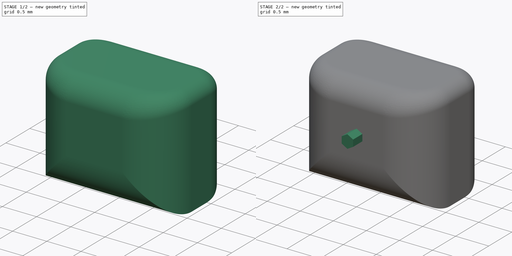
[diagram: build sequence overview — one tinted view per stage of 2, left to right]
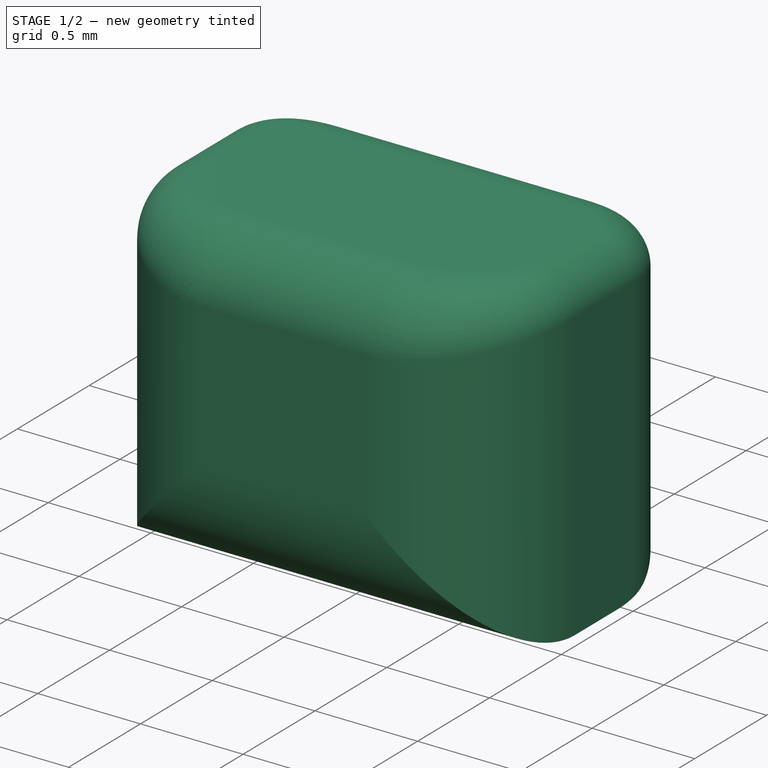
[diagram: stage 1 of 2 — iso view after this stage's code; geometry added in this stage tinted green]
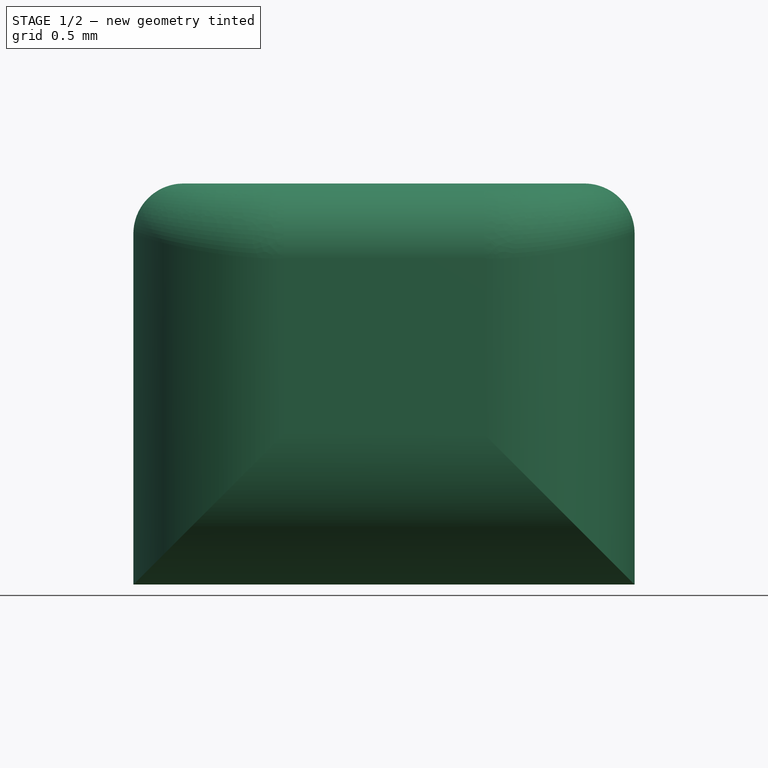
[diagram: stage 1 of 2 — front view after this stage's code; geometry added in this stage tinted green]
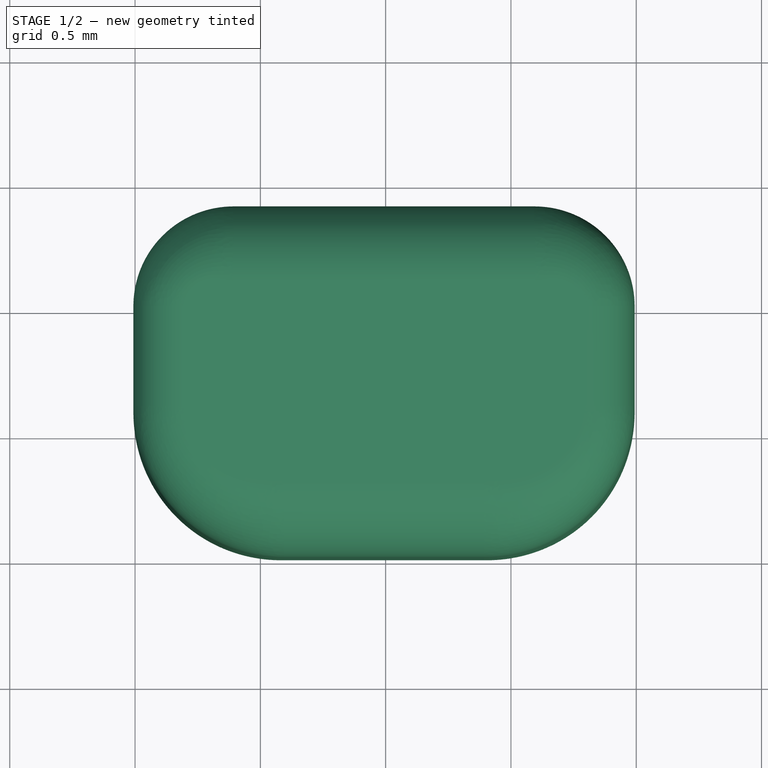
[diagram: stage 1 of 2 — top view after this stage's code; geometry added in this stage tinted green]
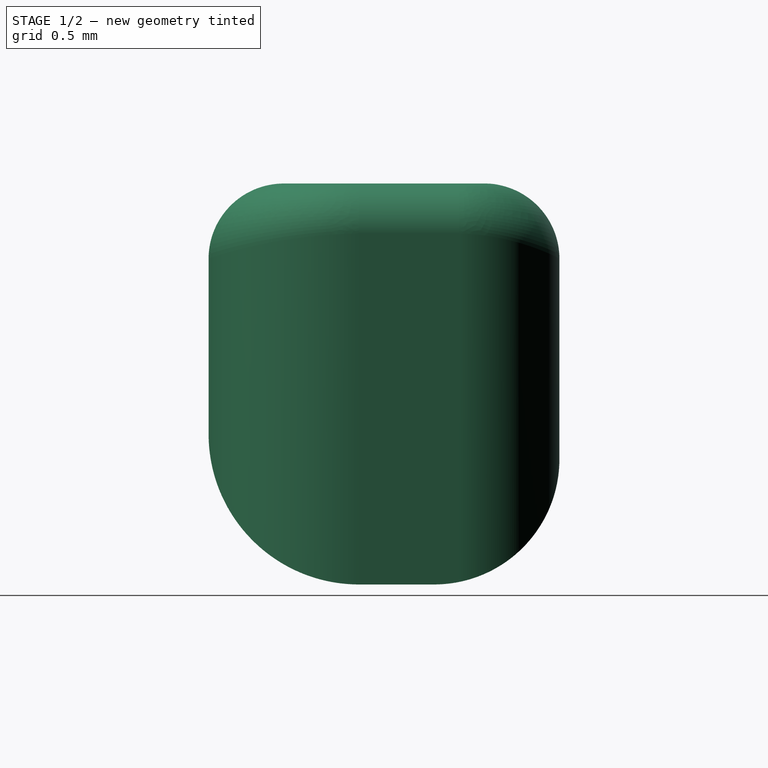
[diagram: stage 1 of 2 — right view after this stage's code; geometry added in this stage tinted green]
FCSTD DOCUMENT  (FreeCAD 0.15R4671 (Git))
Label: head_girl
License: All rights reserved
LicenseURL: http://en.wikipedia.org/wiki/All_rights_reserved
objects: Sketcher::SketchObject×2, PartDesign::Pad×2, Part::Fillet×1
note: 7 computed .brp shape members not serialized (recipe doc carries the construction recipe); baked Part::Feature solids carry a one-line shape summary decoded from their .brp

FEATURE [Sketcher::SketchObject] Sketch002  label="head_sketch"
  Placement = pos=(-0.00651598,2.00404,0.675175) rot=(0,0,1;0rad)
  sketch-geometry (5):
    g0: LineSegment StartX=-1 StartY=1.4 StartZ=0 EndX=1 EndY=1.4 EndZ=0
    g1: LineSegment StartX=1 StartY=1.4 StartZ=0 EndX=1 EndY=0 EndZ=0
    g2: LineSegment StartX=1 StartY=0 StartZ=0 EndX=-1 EndY=0 EndZ=0
    g3: LineSegment StartX=-1 StartY=0 StartZ=0 EndX=-1 EndY=1.4 EndZ=0
    g4: GeomPoint [constr] X=0 Y=0 Z=0
  constraints (14):
    c: Coincident(g0,g1)
    c: Coincident(g1,g2)
    c: Coincident(g2,g3)
    c: Coincident(g3,g0)
    c: Horizontal(g0)
    c: Horizontal(g2)
    c: Vertical(g1)
    c: Vertical(g3)
    c: PointOnObject(g4,g2)
    c: DistanceX(g4) = 0
    c: DistanceY(g4) = 0
    c: Symmetric(g2,g1,g-1)
    c: Distance(g3) = 1.4
    c: Distance(g0) = 2
FEATURE [PartDesign::Pad] Pad001  label="head"
  Length = 1.6
  Length2 = 100
  Placement = pos=(-0.00651598,2.00404,0.675175) rot=(0,0,1;0rad)
  Reversed = true
  Sketch = -> Sketch002
  Type = 0
FEATURE [Part::Fillet] Fillet003001  label="HeadGirl"
  Base = -> Pad001
  Edges = 10 edges: [Edge1 r=0.4,Edge2 r=0.4,Edge3 r=0.3,Edge4 r=0.5,Edge5 r=0.6,Edge6 r=0.2,Edge8 r=0.6,Edge9 r=0.3,Edge10 r=0.6,Edge11 r=0.2]
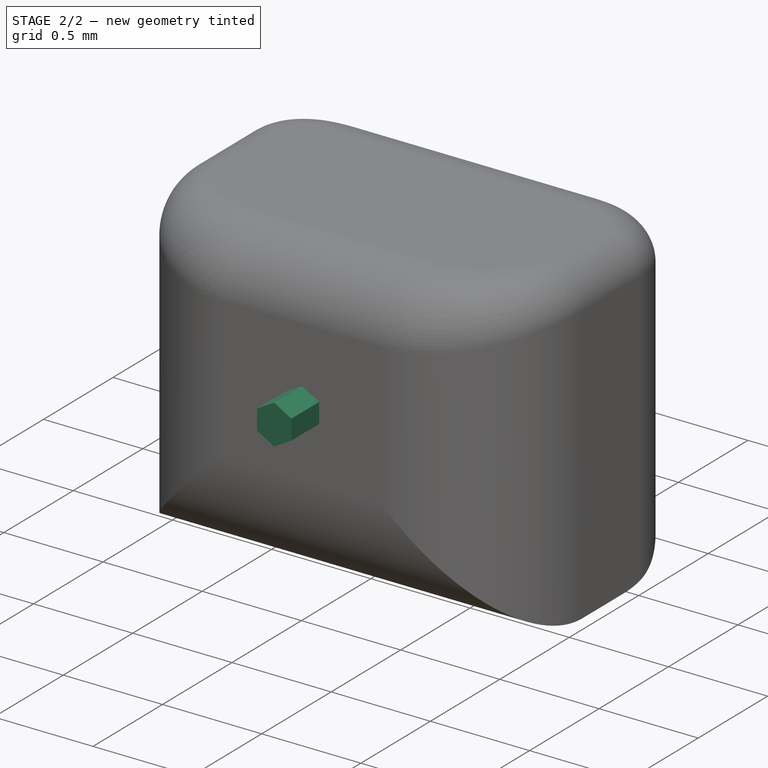
[diagram: stage 2 of 2 — iso view after this stage's code; geometry added in this stage tinted green]
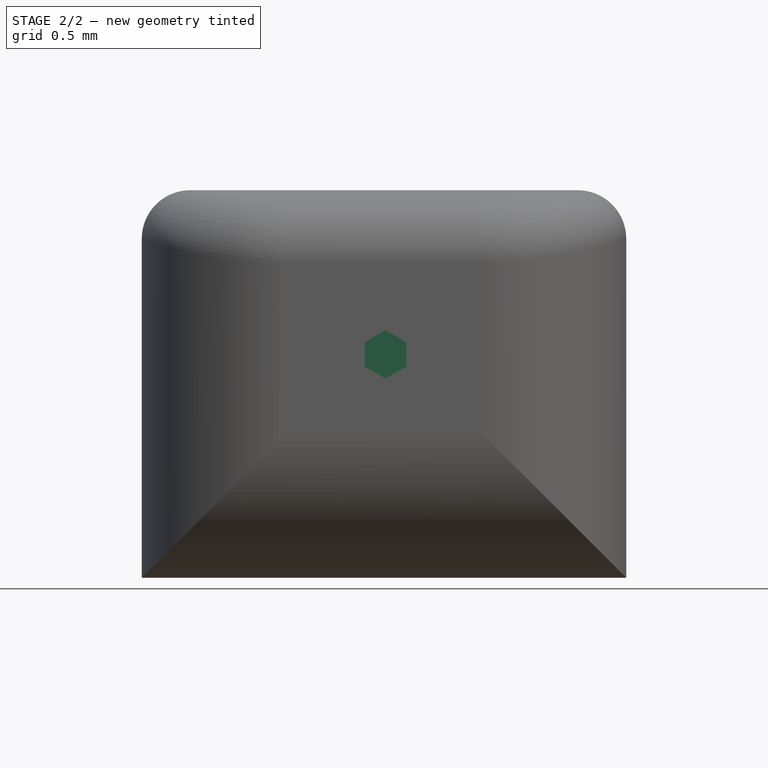
[diagram: stage 2 of 2 — front view after this stage's code; geometry added in this stage tinted green]
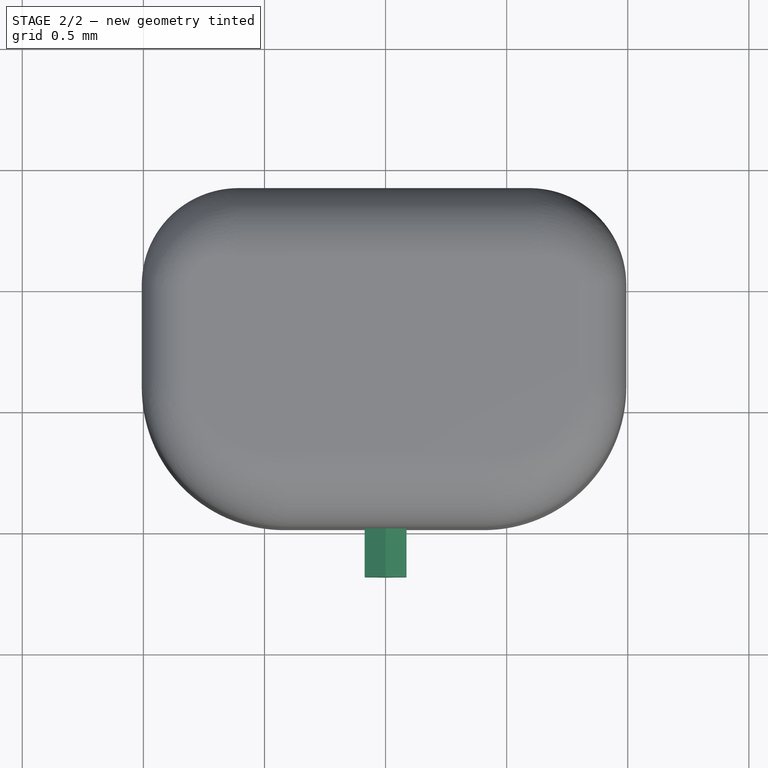
[diagram: stage 2 of 2 — top view after this stage's code; geometry added in this stage tinted green]
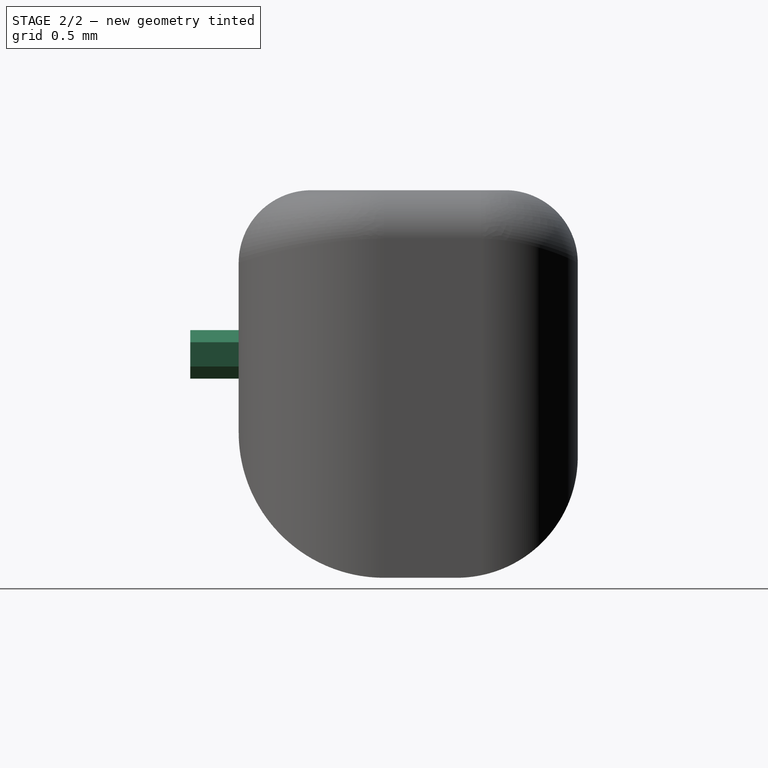
[diagram: stage 2 of 2 — right view after this stage's code; geometry added in this stage tinted green]
FEATURE [Sketcher::SketchObject] Sketch003  label="join"
  Placement = pos=(0,2.00404,0) rot=(1,0,0;1.5708rad)
  Support = -> Fillet003001 [Face20]
  sketch-geometry (7):
    g0: LineSegment StartX=0 StartY=0.0975258 StartZ=0 EndX=-0.0866025 EndY=0.0475258 EndZ=0
    g1: LineSegment StartX=-0.0866025 StartY=0.0475258 StartZ=0 EndX=-0.0866025 EndY=-0.0524742 EndZ=0
    g2: LineSegment StartX=-0.0866025 StartY=-0.0524742 StartZ=0 EndX=0 EndY=-0.102474 EndZ=0
    g3: LineSegment StartX=0 StartY=-0.102474 StartZ=0 EndX=0.0866025 EndY=-0.0524742 EndZ=0
    g4: LineSegment StartX=0.0866025 StartY=-0.0524742 StartZ=0 EndX=0.0866025 EndY=0.0475258 EndZ=0
    g5: LineSegment StartX=0.0866025 StartY=0.0475258 StartZ=0 EndX=0 EndY=0.0975258 EndZ=0
    g6: Circle [constr] CenterX=0 CenterY=-0.00247421 CenterZ=0 NormalX=0 NormalY=0 NormalZ=1 Radius=0.1
  constraints (16):
    c: Coincident(g0,g1)
    c: Coincident(g1,g2)
    c: Coincident(g2,g3)
    c: Coincident(g3,g4)
    c: Coincident(g4,g5)
    c: Coincident(g5,g0)
    c: Equal(g0, g1-g5) x5
    c: PointOnObject(g0,g6)
    c: PointOnObject(g1,g6)
    c: PointOnObject(g2,g6)
    c: PointOnObject(g3,g6)
    c: PointOnObject(g4,g6)
    c: PointOnObject(g5,g6)
    c: Coincident(g3,g-1)
    c: Vertical(g4)
    c: Radius(g6) = 0.1
FEATURE [PartDesign::Pad] Pad
  Length = 0.2
  Length2 = 100
  Sketch = -> Sketch003
  Type = 0
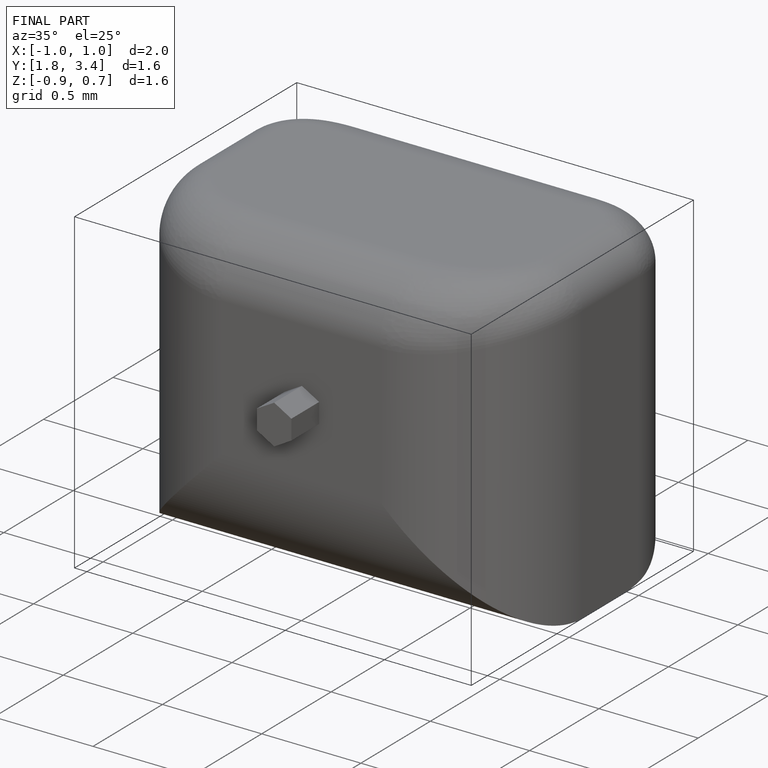
[diagram: finished part — iso view with bounding-box wireframe]
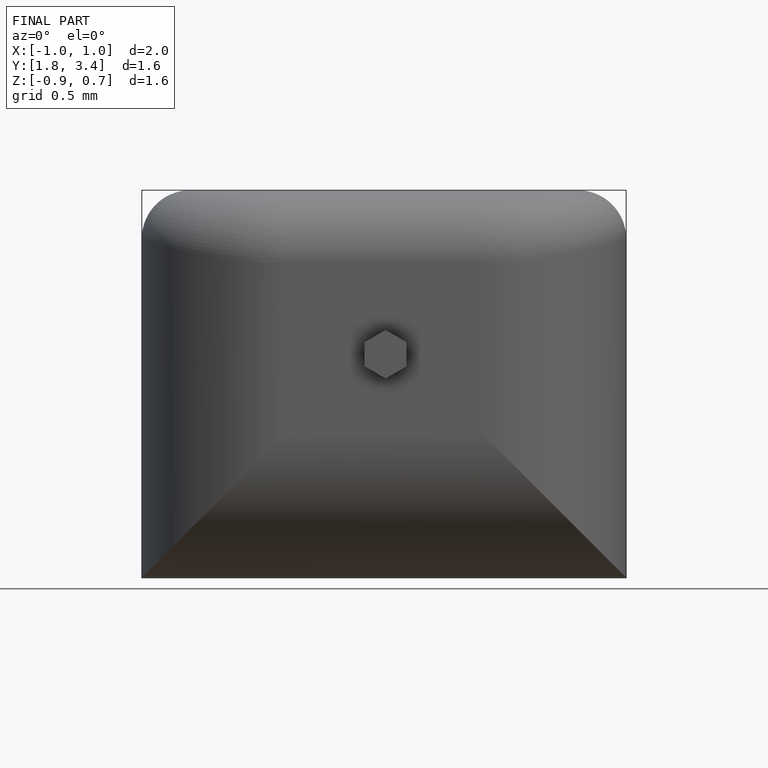
[diagram: finished part — front view with bounding-box wireframe]
